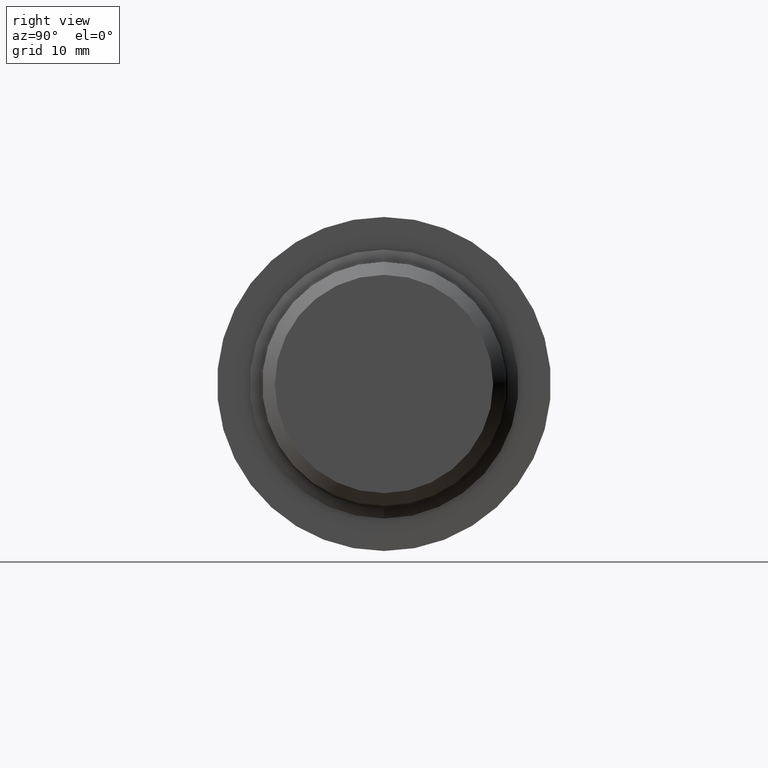
[diagram: clean part render]
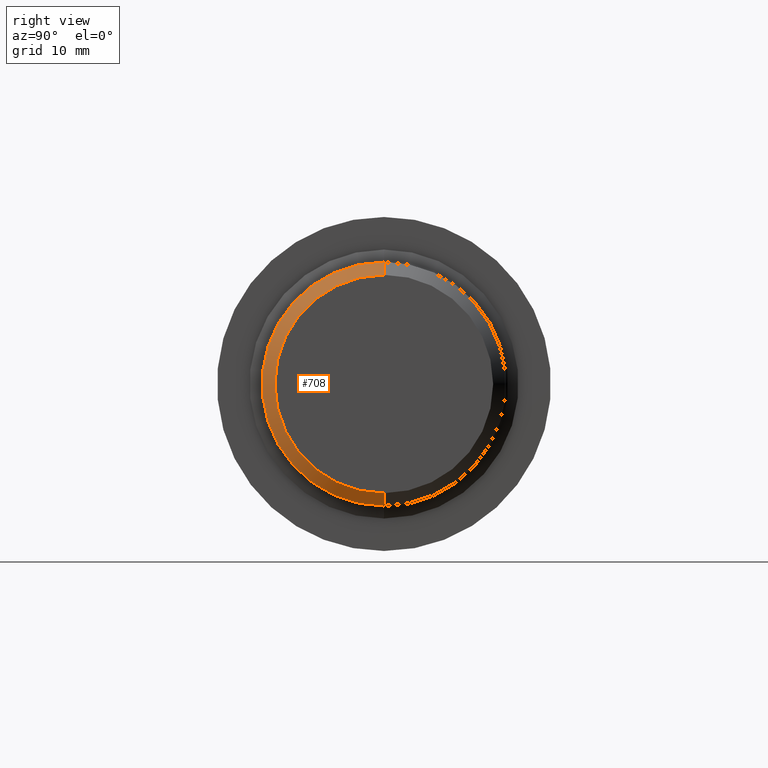
[diagram: same view with one face highlighted and labeled with its STEP entity id]
A machine part, right view. The second image highlights one B-rep face of the part: STEP entity #708.
In plain terms, the highlighted conical surface has half-angle 45 deg.
Its self-contained STEP definition (entity closure, byte-faithful):
#3 = CARTESIAN_POINT ( 'NONE',  ( 3.500000000000000000, 8.855421004634508319E-17, -0.6830999999999995964 ) ) ;
#6 = DIRECTION ( 'NONE',  ( -1.000000000000000000, -0.000000000000000000, -0.000000000000000000 ) ) ;
#25 = VERTEX_POINT ( 'NONE', #148 ) ;
#34 = CONICAL_SURFACE ( 'NONE', #652, 0.6830999999999995964, 0.7853981633974491672 ) ;
#36 = DIRECTION ( 'NONE',  ( -1.000000000000000000, -0.000000000000000000, -0.000000000000000000 ) ) ;
#49 = EDGE_CURVE ( 'NONE', #399, #629, #288, .T. ) ;
#53 = FACE_OUTER_BOUND ( 'NONE', #354, .T. ) ;
#54 = DIRECTION ( 'NONE',  ( -0.7071067811865469066, 0.000000000000000000, 0.7071067811865481278 ) ) ;
#86 = CARTESIAN_POINT ( 'NONE',  ( 3.419999999999999485, 0.000000000000000000, 0.000000000000000000 ) ) ;
#97 = ORIENTED_EDGE ( 'NONE', *, *, #358, .F. ) ;
#148 = CARTESIAN_POINT ( 'NONE',  ( 3.419999999999999485, 0.000000000000000000, 0.7631000000000000005 ) ) ;
#152 = DIRECTION ( 'NONE',  ( 0.000000000000000000, 0.000000000000000000, 1.000000000000000000 ) ) ;
#172 = DIRECTION ( 'NONE',  ( -0.7071067811865469066, 8.659560562354940254E-17, -0.7071067811865481278 ) ) ;
#176 = LINE ( 'NONE', #561, #231 ) ;
#194 = VERTEX_POINT ( 'NONE', #655 ) ;
#231 = VECTOR ( 'NONE', #172, 39.37007874015748143 ) ;
#260 = DIRECTION ( 'NONE',  ( 0.000000000000000000, 0.000000000000000000, 1.000000000000000000 ) ) ;
#266 = EDGE_CURVE ( 'NONE', #629, #25, #613, .T. ) ;
#282 = AXIS2_PLACEMENT_3D ( 'NONE', #86, #309, #260 ) ;
#288 = CIRCLE ( 'NONE', #648, 0.6830999999999995964 ) ;
#295 = CARTESIAN_POINT ( 'NONE',  ( 3.500000000000000000, 0.000000000000000000, 0.000000000000000000 ) ) ;
#309 = DIRECTION ( 'NONE',  ( -1.000000000000000000, -0.000000000000000000, -0.000000000000000000 ) ) ;
#354 = EDGE_LOOP ( 'NONE', ( #97, #518, #475, #457 ) ) ;
#358 = EDGE_CURVE ( 'NONE', #399, #194, #176, .T. ) ;
#398 = CARTESIAN_POINT ( 'NONE',  ( 3.500000000000000000, 0.000000000000000000, 0.6830999999999995964 ) ) ;
#399 = VERTEX_POINT ( 'NONE', #3 ) ;
#444 = DIRECTION ( 'NONE',  ( 0.000000000000000000, 0.000000000000000000, 1.000000000000000000 ) ) ;
#457 = ORIENTED_EDGE ( 'NONE', *, *, #500, .F. ) ;
#475 = ORIENTED_EDGE ( 'NONE', *, *, #266, .T. ) ;
#488 = CIRCLE ( 'NONE', #282, 0.7631000000000000005 ) ;
#500 = EDGE_CURVE ( 'NONE', #194, #25, #488, .T. ) ;
#518 = ORIENTED_EDGE ( 'NONE', *, *, #49, .T. ) ;
#561 = CARTESIAN_POINT ( 'NONE',  ( 3.500000000000000000, 8.365562284975564423E-17, -0.6830999999999995964 ) ) ;
#579 = CARTESIAN_POINT ( 'NONE',  ( 3.500000000000000000, 0.000000000000000000, 0.000000000000000000 ) ) ;
#613 = LINE ( 'NONE', #398, #659 ) ;
#629 = VERTEX_POINT ( 'NONE', #703 ) ;
#648 = AXIS2_PLACEMENT_3D ( 'NONE', #579, #36, #152 ) ;
#652 = AXIS2_PLACEMENT_3D ( 'NONE', #295, #6, #444 ) ;
#655 = CARTESIAN_POINT ( 'NONE',  ( 3.419999999999999485, 9.345279724293452215E-17, -0.7631000000000000005 ) ) ;
#659 = VECTOR ( 'NONE', #54, 39.37007874015748143 ) ;
#703 = CARTESIAN_POINT ( 'NONE',  ( 3.500000000000000000, 0.000000000000000000, 0.6830999999999995964 ) ) ;
#708 = ADVANCED_FACE ( 'NONE', ( #53 ), #34, .T. ) ;